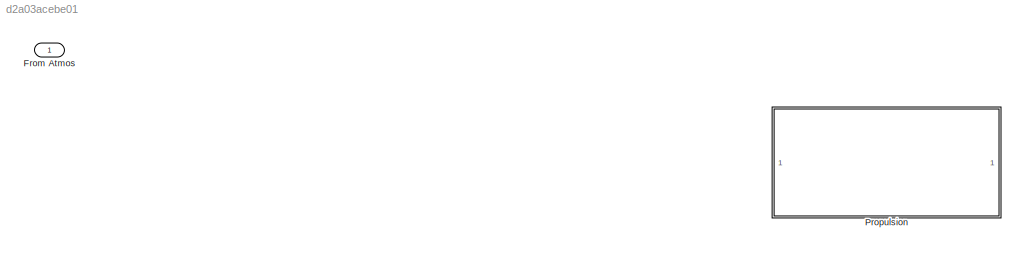
MODEL slx_d2a03acebe01
KIND model
CONFIG AbsTol = auto
CONFIG EnableMultiTasking = off
CONFIG FixedStep = auto
CONFIG MaxStep = auto
CONFIG MinStep = auto
CONFIG RelTol = 1e-3
CONFIG SampleTimeConstraint = Unconstrained
CONFIG SolverName = VariableStepAuto
CONFIG StartTime = 0.0
CONFIG StopTime = 10.0
BLOCK [Inport] From Atmos
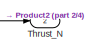
[diagram: Propulsion - part 1/4, top right region]
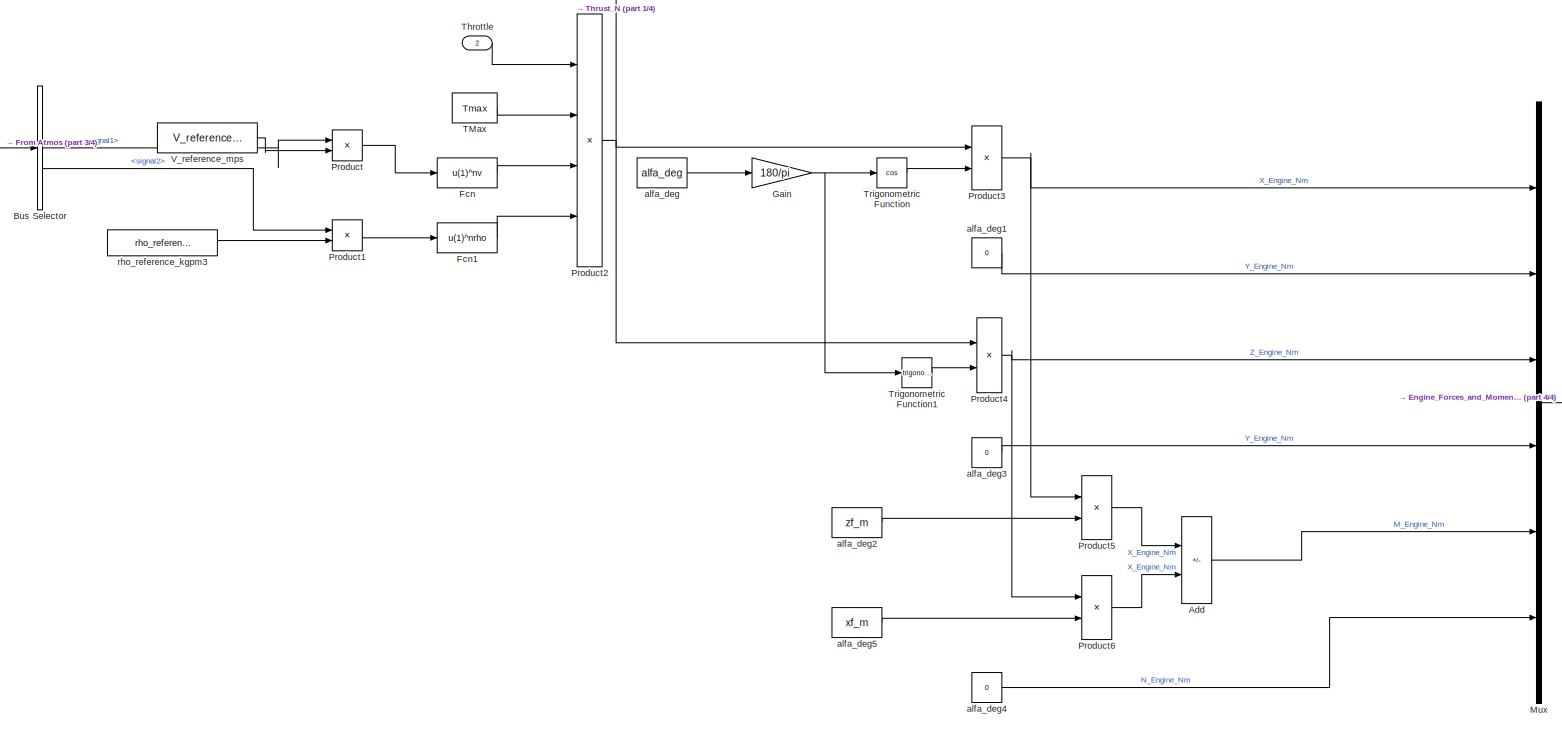
[diagram: Propulsion - part 2/4, most of the canvas]
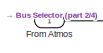
[diagram: Propulsion - part 3/4, top left region]
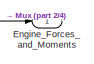
[diagram: Propulsion - part 4/4, middle right region]
BLOCK [SubSystem] Propulsion
BLOCK [Sum] Propulsion/Add
  IconShape = rectangular
  Inputs = +-
BLOCK [BusSelector] Propulsion/Bus Selector
  OutputSignals = signal1,signal2
BLOCK [Outport] Propulsion/Engine_Forces_and_Moments
BLOCK [Fcn] Propulsion/Fcn
  Expr = u(1)^nv
BLOCK [Fcn] Propulsion/Fcn1
  Expr = u(1)^nrho
BLOCK [Inport] Propulsion/From Atmos
BLOCK [Gain] Propulsion/Gain
  Gain = 180/pi
BLOCK [Mux] Propulsion/Mux
  DisplayOption = bar
  Inputs = 6
BLOCK [Product] Propulsion/Product
  Inputs = */
BLOCK [Product] Propulsion/Product1
  Inputs = */
BLOCK [Product] Propulsion/Product2
  Inputs = ****
BLOCK [Product] Propulsion/Product3
BLOCK [Product] Propulsion/Product4
BLOCK [Product] Propulsion/Product5
BLOCK [Product] Propulsion/Product6
BLOCK [Constant] Propulsion/TMax
  Value = Tmax
BLOCK [Inport] Propulsion/Throttle
  Port = 2
BLOCK [Outport] Propulsion/Thrust_N
  Port = 2
BLOCK [Trigonometry] Propulsion/Trigonometric Function
  Operator = cos
BLOCK [Trigonometry] Propulsion/Trigonometric Function1
BLOCK [Constant] Propulsion/V_reference_mps
  Value = V_reference_mps
BLOCK [Constant] Propulsion/alfa_deg
  Value = alfa_deg
BLOCK [Constant] Propulsion/alfa_deg1
  Value = 0
BLOCK [Constant] Propulsion/alfa_deg2
  Value = zf_m
BLOCK [Constant] Propulsion/alfa_deg3
  Value = 0
BLOCK [Constant] Propulsion/alfa_deg4
  Value = 0
BLOCK [Constant] Propulsion/alfa_deg5
  Value = xf_m
BLOCK [Constant] Propulsion/rho_reference_kgpm3
  Value = rho_reference_kgpm3
LINE Propulsion/Add:1 -> Propulsion/Mux:5
LINE Propulsion/Bus Selector:1 -> Propulsion/Product:1
LINE Propulsion/Bus Selector:2 -> Propulsion/Product1:1
LINE Propulsion/Fcn1:1 -> Propulsion/Product2:4
LINE Propulsion/Fcn:1 -> Propulsion/Product2:3
LINE Propulsion/From Atmos:1 -> Propulsion/Bus Selector:1
NET Propulsion/Gain:1 -> Propulsion/Trigonometric Function1:1, Propulsion/Trigonometric Function:1
LINE Propulsion/Mux:1 -> Propulsion/Engine_Forces_and_Moments:1
LINE Propulsion/Product1:1 -> Propulsion/Fcn1:1
NET Propulsion/Product2:1 -> Propulsion/Product3:1, Propulsion/Product4:1, Propulsion/Thrust_N:1
NET Propulsion/Product3:1 -> Propulsion/Mux:1, Propulsion/Product5:1
NET Propulsion/Product4:1 -> Propulsion/Mux:3, Propulsion/Product6:1
LINE Propulsion/Product5:1 -> Propulsion/Add:1
LINE Propulsion/Product6:1 -> Propulsion/Add:2
LINE Propulsion/Product:1 -> Propulsion/Fcn:1
LINE Propulsion/TMax:1 -> Propulsion/Product2:2
LINE Propulsion/Throttle:1 -> Propulsion/Product2:1
LINE Propulsion/Trigonometric Function1:1 -> Propulsion/Product4:2
LINE Propulsion/Trigonometric Function:1 -> Propulsion/Product3:2
LINE Propulsion/V_reference_mps:1 -> Propulsion/Product:2
LINE Propulsion/alfa_deg1:1 -> Propulsion/Mux:2
LINE Propulsion/alfa_deg2:1 -> Propulsion/Product5:2
LINE Propulsion/alfa_deg3:1 -> Propulsion/Mux:4
LINE Propulsion/alfa_deg4:1 -> Propulsion/Mux:6
LINE Propulsion/alfa_deg5:1 -> Propulsion/Product6:2
LINE Propulsion/alfa_deg:1 -> Propulsion/Gain:1
LINE Propulsion/rho_reference_kgpm3:1 -> Propulsion/Product1:2
note: NET lines group one-source signal fan-out (src -> all destinations, sorted); 1:1 wires keep LINE
